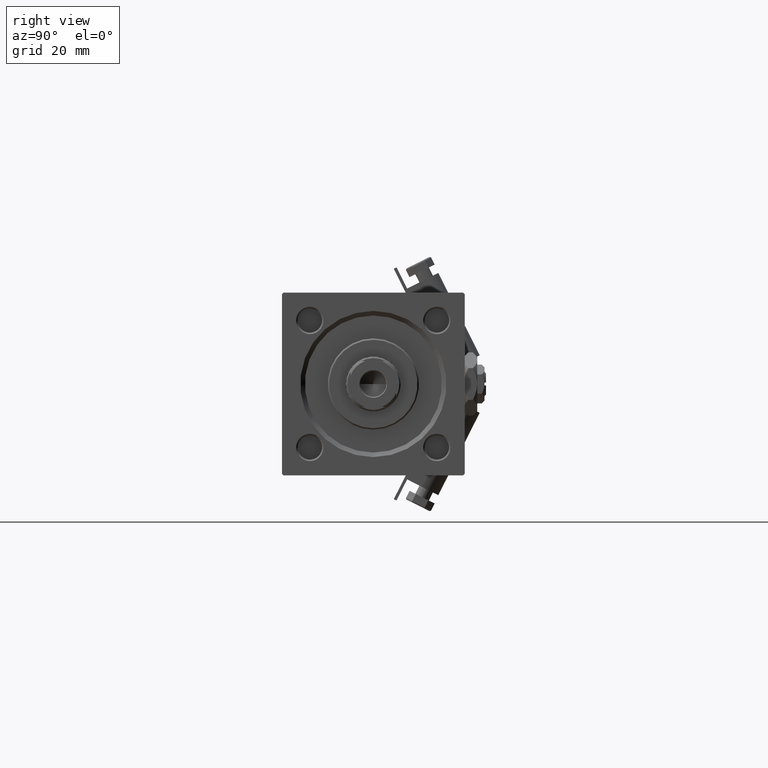
[diagram: clean part render]
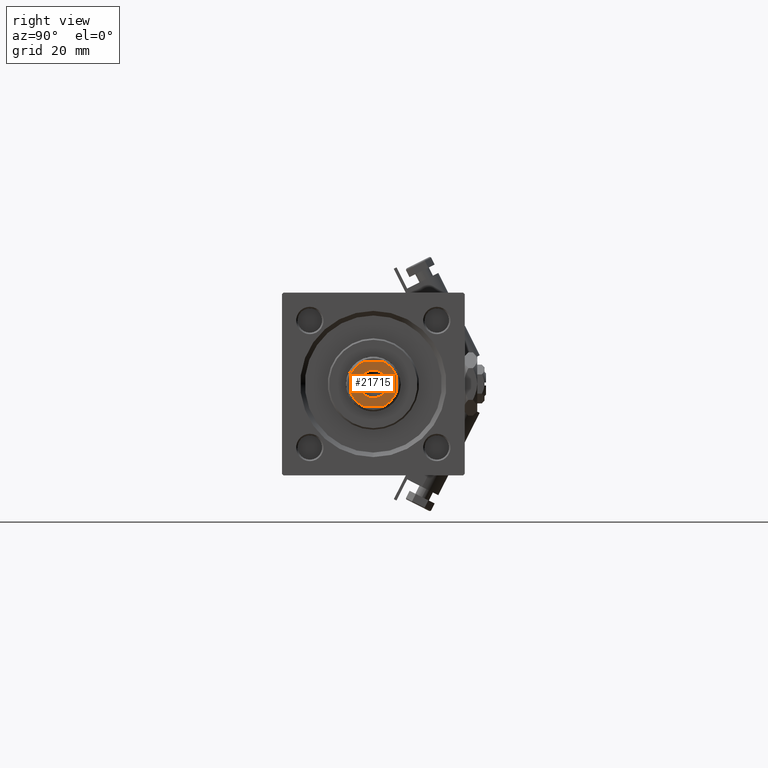
[diagram: same view with one face highlighted and labeled with its STEP entity id]
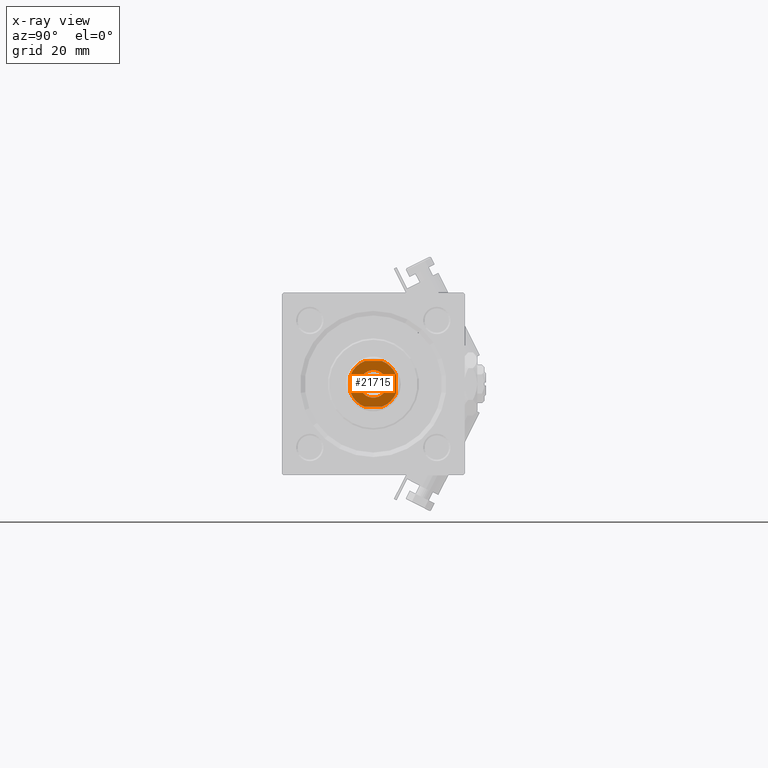
[diagram: x-ray of the same camera — body ghosted, the highlighted face saturated]
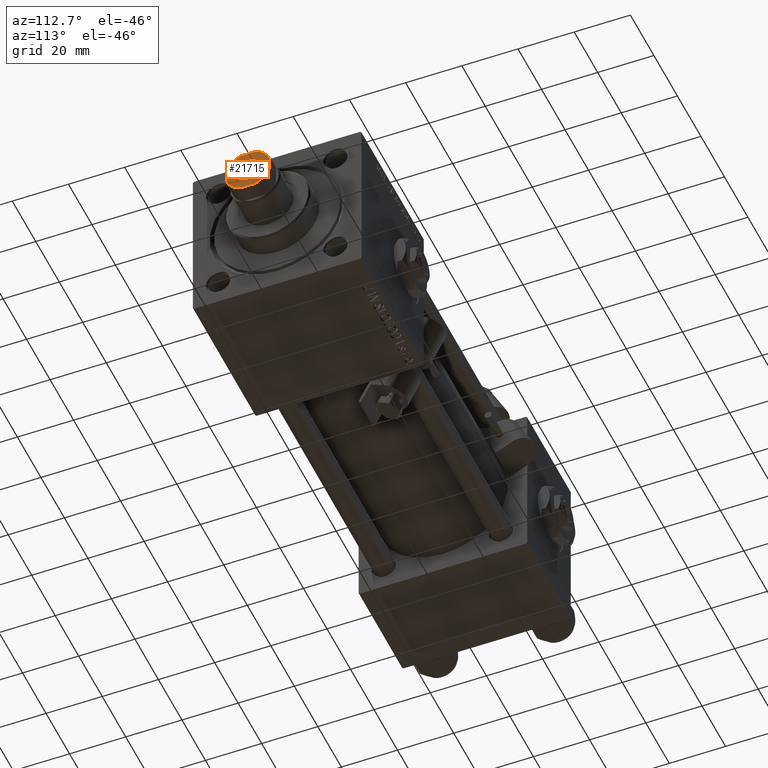
[diagram: same view with one face highlighted and labeled with its STEP entity id]
A machine part, right view. The second image highlights one B-rep face of the part: STEP entity #21715.
The next image is the same camera in x-ray: the body ghosted, the highlighted face saturated — about 0% of this face is hidden behind the body in this view.
A second angle (auxiliary view) of the same face is appended — the face is thin or edge-on in the first view.
In plain terms, the highlighted planar face has unit normal (1, 0, 0).
Its self-contained STEP definition (entity closure, byte-faithful):
#498 = ORIENTED_EDGE ( 'NONE', *, *, #47163, .T. ) ;
#529 = CARTESIAN_POINT ( 'NONE',  ( -2.783882181415014312, 7.499999999999999112, 166.0000000000000000 ) ) ;
#665 = LINE ( 'NONE', #34342, #13306 ) ;
#987 = VECTOR ( 'NONE', #52635, 1000.000000000000000 ) ;
#2141 = DIRECTION ( 'NONE',  ( -0.000000000000000000, 0.000000000000000000, 1.000000000000000000 ) ) ;
#2772 = CARTESIAN_POINT ( 'NONE',  ( 0.000000000000000000, 0.000000000000000000, 166.0000000000000000 ) ) ;
#2995 = EDGE_CURVE ( 'NONE', #47372, #16606, #40225, .T. ) ;
#3282 = CARTESIAN_POINT ( 'NONE',  ( -7.500000000000000000, 7.499999999999998224, 166.0000000000000000 ) ) ;
#3791 = AXIS2_PLACEMENT_3D ( 'NONE', #24005, #47955, #11020 ) ;
#4254 = CARTESIAN_POINT ( 'NONE',  ( 7.500000000000000888, 2.783882181414931267, 166.0000000000000000 ) ) ;
#4551 = AXIS2_PLACEMENT_3D ( 'NONE', #46103, #4856, #21317 ) ;
#4856 = DIRECTION ( 'NONE',  ( -0.000000000000000000, 0.000000000000000000, 1.000000000000000000 ) ) ;
#5932 = CARTESIAN_POINT ( 'NONE',  ( 0.000000000000000000, 0.000000000000000000, 166.0000000000000000 ) ) ;
#6545 = DIRECTION ( 'NONE',  ( 0.000000000000000000, -0.000000000000000000, -1.000000000000000000 ) ) ;
#8417 = CIRCLE ( 'NONE', #19633, 4.550000000000039790 ) ;
#8495 = AXIS2_PLACEMENT_3D ( 'NONE', #5932, #2141, #26440 ) ;
#9572 = VERTEX_POINT ( 'NONE', #4254 ) ;
#10118 = DIRECTION ( 'NONE',  ( 0.000000000000000000, -0.000000000000000000, -1.000000000000000000 ) ) ;
#10786 = CARTESIAN_POINT ( 'NONE',  ( 2.783882181414932599, -7.500000000000000000, 166.0000000000000000 ) ) ;
#11020 = DIRECTION ( 'NONE',  ( 1.000000000000000000, 0.000000000000000000, 0.000000000000000000 ) ) ;
#11348 = ORIENTED_EDGE ( 'NONE', *, *, #48177, .T. ) ;
#11583 = CARTESIAN_POINT ( 'NONE',  ( 7.500000000000000888, -2.783882181414929491, 166.0000000000000000 ) ) ;
#12060 = VERTEX_POINT ( 'NONE', #17360 ) ;
#12109 = ORIENTED_EDGE ( 'NONE', *, *, #2995, .T. ) ;
#13167 = LINE ( 'NONE', #33141, #37755 ) ;
#13306 = VECTOR ( 'NONE', #41920, 1000.000000000000000 ) ;
#13430 = EDGE_CURVE ( 'NONE', #49563, #9572, #665, .T. ) ;
#13835 = FACE_BOUND ( 'NONE', #45141, .T. ) ;
#13940 = VERTEX_POINT ( 'NONE', #10786 ) ;
#14906 = CARTESIAN_POINT ( 'NONE',  ( 0.000000000000000000, 0.000000000000000000, 166.0000000000000000 ) ) ;
#16507 = DIRECTION ( 'NONE',  ( 1.156482317317871725E-16, -1.000000000000000000, 0.000000000000000000 ) ) ;
#16606 = VERTEX_POINT ( 'NONE', #529 ) ;
#17360 = CARTESIAN_POINT ( 'NONE',  ( -7.499999999999999112, 2.783882181415014756, 166.0000000000000000 ) ) ;
#19182 = ORIENTED_EDGE ( 'NONE', *, *, #38850, .T. ) ;
#19633 = AXIS2_PLACEMENT_3D ( 'NONE', #2772, #6545, #51844 ) ;
#19703 = CARTESIAN_POINT ( 'NONE',  ( 2.783882181414934820, 7.499999999999999112, 166.0000000000000000 ) ) ;
#21317 = DIRECTION ( 'NONE',  ( 1.000000000000000000, 0.000000000000000000, 0.000000000000000000 ) ) ;
#21715 = ADVANCED_FACE ( 'NONE', ( #13835, #30290 ), #31618, .T. ) ;
#23505 = CIRCLE ( 'NONE', #4551, 7.999999999999972466 ) ;
#24005 = CARTESIAN_POINT ( 'NONE',  ( 0.000000000000000000, 0.000000000000000000, 166.0000000000000000 ) ) ;
#24078 = ORIENTED_EDGE ( 'NONE', *, *, #46443, .T. ) ;
#24195 = EDGE_CURVE ( 'NONE', #28327, #28919, #33429, .T. ) ;
#24300 = ORIENTED_EDGE ( 'NONE', *, *, #24195, .T. ) ;
#25890 = ORIENTED_EDGE ( 'NONE', *, *, #13430, .T. ) ;
#26440 = DIRECTION ( 'NONE',  ( 1.000000000000000000, 0.000000000000000000, 0.000000000000000000 ) ) ;
#27020 = CIRCLE ( 'NONE', #3791, 8.000000000000000000 ) ;
#28327 = VERTEX_POINT ( 'NONE', #32286 ) ;
#28904 = CARTESIAN_POINT ( 'NONE',  ( -7.500000000000000000, 7.499999999999998224, 166.0000000000000000 ) ) ;
#28919 = VERTEX_POINT ( 'NONE', #46913 ) ;
#29172 = CIRCLE ( 'NONE', #8495, 8.000000000000000000 ) ;
#29274 = CIRCLE ( 'NONE', #32696, 7.999999999999972466 ) ;
#30290 = FACE_OUTER_BOUND ( 'NONE', #45656, .T. ) ;
#30739 = CARTESIAN_POINT ( 'NONE',  ( -7.499999999999997335, -2.783882181415016088, 166.0000000000000000 ) ) ;
#31080 = DIRECTION ( 'NONE',  ( 1.000000000000000000, 0.000000000000000000, 0.000000000000000000 ) ) ;
#31618 = PLANE ( 'NONE',  #39296 ) ;
#31640 = EDGE_CURVE ( 'NONE', #13940, #49563, #29274, .T. ) ;
#32286 = CARTESIAN_POINT ( 'NONE',  ( -4.550000000000039790, 5.572142936120505645E-16, 166.0000000000000000 ) ) ;
#32696 = AXIS2_PLACEMENT_3D ( 'NONE', #47915, #48200, #52254 ) ;
#33141 = CARTESIAN_POINT ( 'NONE',  ( -7.499999999999998224, -7.500000000000000000, 166.0000000000000000 ) ) ;
#33429 = CIRCLE ( 'NONE', #45474, 4.550000000000039790 ) ;
#34125 = CARTESIAN_POINT ( 'NONE',  ( 0.000000000000000000, 0.000000000000000000, 166.0000000000000000 ) ) ;
#34254 = VECTOR ( 'NONE', #16507, 1000.000000000000000 ) ;
#34342 = CARTESIAN_POINT ( 'NONE',  ( 7.500000000000000000, 7.500000000000000000, 166.0000000000000000 ) ) ;
#34513 = ORIENTED_EDGE ( 'NONE', *, *, #31640, .T. ) ;
#34526 = VERTEX_POINT ( 'NONE', #40298 ) ;
#35236 = ORIENTED_EDGE ( 'NONE', *, *, #49412, .T. ) ;
#35672 = DIRECTION ( 'NONE',  ( -0.000000000000000000, 0.000000000000000000, 1.000000000000000000 ) ) ;
#37755 = VECTOR ( 'NONE', #42021, 1000.000000000000000 ) ;
#38850 = EDGE_CURVE ( 'NONE', #9572, #47372, #23505, .T. ) ;
#39296 = AXIS2_PLACEMENT_3D ( 'NONE', #14906, #35672, #31080 ) ;
#40225 = LINE ( 'NONE', #3282, #987 ) ;
#40298 = CARTESIAN_POINT ( 'NONE',  ( -2.783882181415011203, -7.500000000000000000, 166.0000000000000000 ) ) ;
#41296 = LINE ( 'NONE', #28904, #34254 ) ;
#41668 = EDGE_CURVE ( 'NONE', #16606, #12060, #27020, .T. ) ;
#41920 = DIRECTION ( 'NONE',  ( -1.156482317317871478E-16, 1.000000000000000000, -0.000000000000000000 ) ) ;
#42021 = DIRECTION ( 'NONE',  ( 1.000000000000000000, 0.000000000000000000, 0.000000000000000000 ) ) ;
#42497 = DIRECTION ( 'NONE',  ( 1.000000000000000000, 0.000000000000000000, 0.000000000000000000 ) ) ;
#45141 = EDGE_LOOP ( 'NONE', ( #11348, #24300 ) ) ;
#45474 = AXIS2_PLACEMENT_3D ( 'NONE', #34125, #10118, #42497 ) ;
#45656 = EDGE_LOOP ( 'NONE', ( #25890, #19182, #12109, #52853, #35236, #498, #24078, #34513 ) ) ;
#46103 = CARTESIAN_POINT ( 'NONE',  ( 0.000000000000000000, 0.000000000000000000, 166.0000000000000000 ) ) ;
#46443 = EDGE_CURVE ( 'NONE', #34526, #13940, #13167, .T. ) ;
#46913 = CARTESIAN_POINT ( 'NONE',  ( 4.550000000000039790, 0.000000000000000000, 166.0000000000000000 ) ) ;
#47140 = VERTEX_POINT ( 'NONE', #30739 ) ;
#47163 = EDGE_CURVE ( 'NONE', #47140, #34526, #29172, .T. ) ;
#47372 = VERTEX_POINT ( 'NONE', #19703 ) ;
#47915 = CARTESIAN_POINT ( 'NONE',  ( 0.000000000000000000, 0.000000000000000000, 166.0000000000000000 ) ) ;
#47955 = DIRECTION ( 'NONE',  ( -0.000000000000000000, 0.000000000000000000, 1.000000000000000000 ) ) ;
#48177 = EDGE_CURVE ( 'NONE', #28919, #28327, #8417, .T. ) ;
#48200 = DIRECTION ( 'NONE',  ( -0.000000000000000000, 0.000000000000000000, 1.000000000000000000 ) ) ;
#49412 = EDGE_CURVE ( 'NONE', #12060, #47140, #41296, .T. ) ;
#49563 = VERTEX_POINT ( 'NONE', #11583 ) ;
#51844 = DIRECTION ( 'NONE',  ( 1.000000000000000000, 0.000000000000000000, 0.000000000000000000 ) ) ;
#52254 = DIRECTION ( 'NONE',  ( 1.000000000000000000, 0.000000000000000000, 0.000000000000000000 ) ) ;
#52635 = DIRECTION ( 'NONE',  ( -1.000000000000000000, -1.156482317317871478E-16, -0.000000000000000000 ) ) ;
#52853 = ORIENTED_EDGE ( 'NONE', *, *, #41668, .T. ) ;